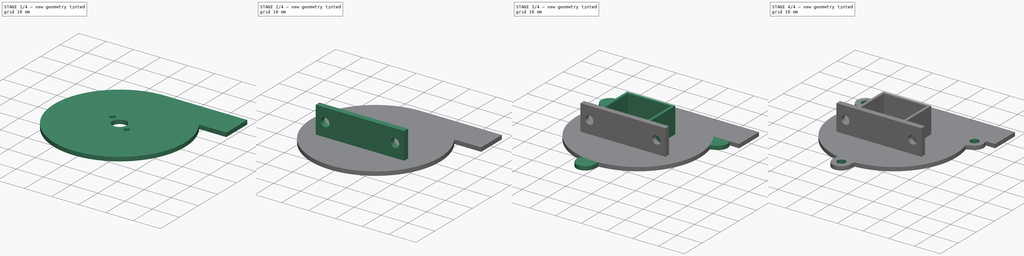
[diagram: build sequence overview — one tinted view per stage of 4, left to right]
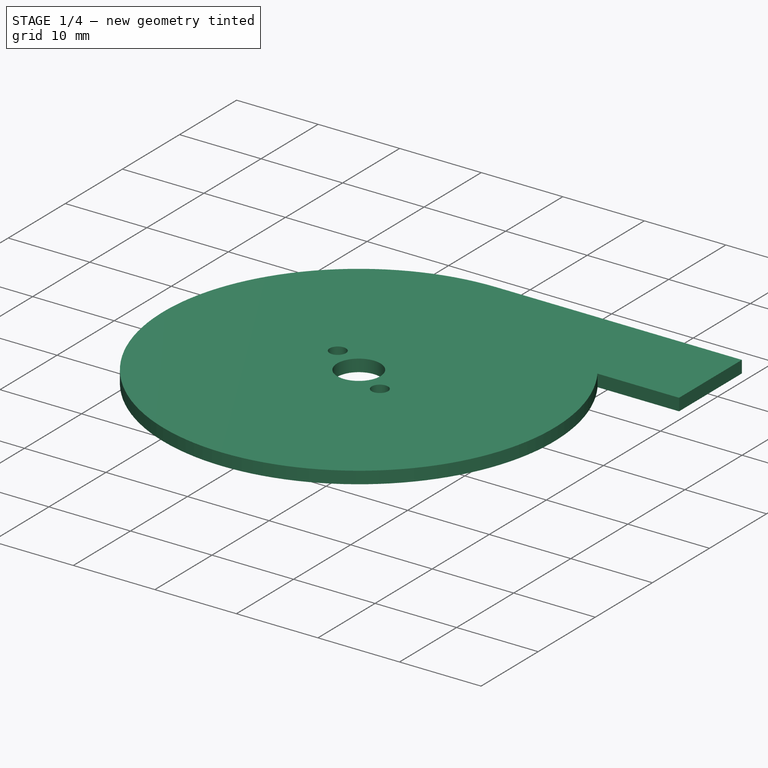
[diagram: stage 1 of 4 — iso view after this stage's code; geometry added in this stage tinted green]
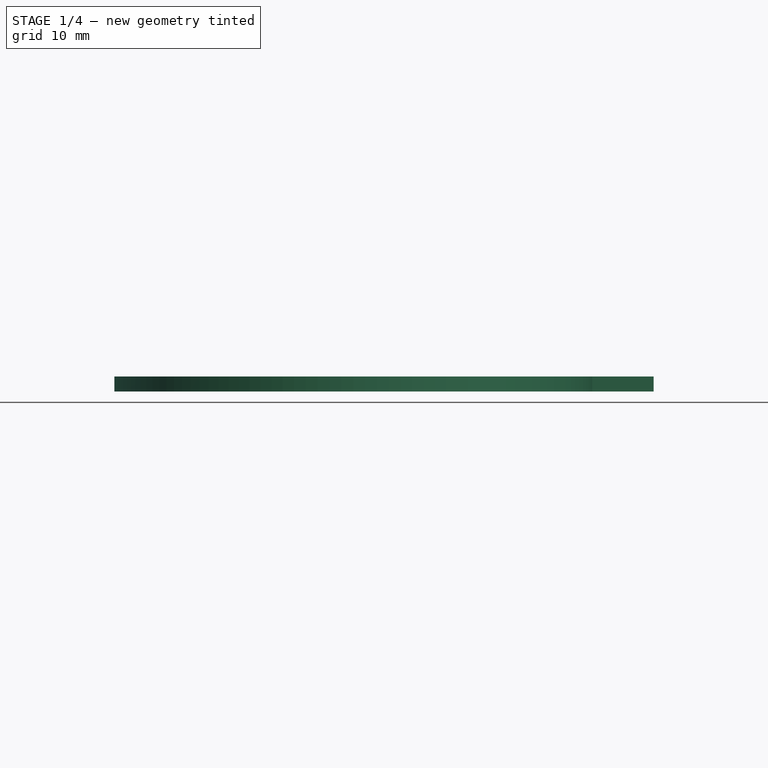
[diagram: stage 1 of 4 — front view after this stage's code; geometry added in this stage tinted green]
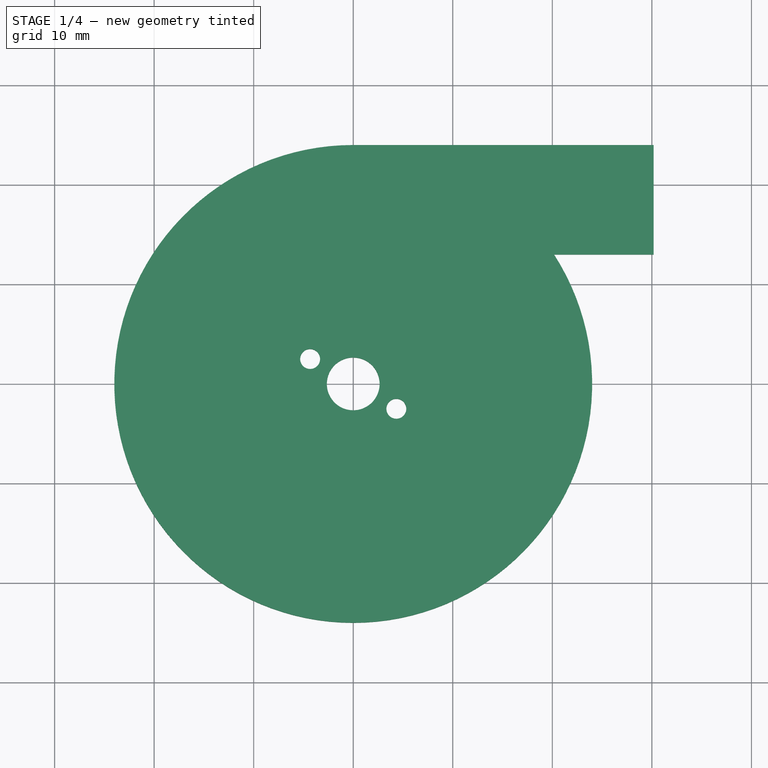
[diagram: stage 1 of 4 — top view after this stage's code; geometry added in this stage tinted green]
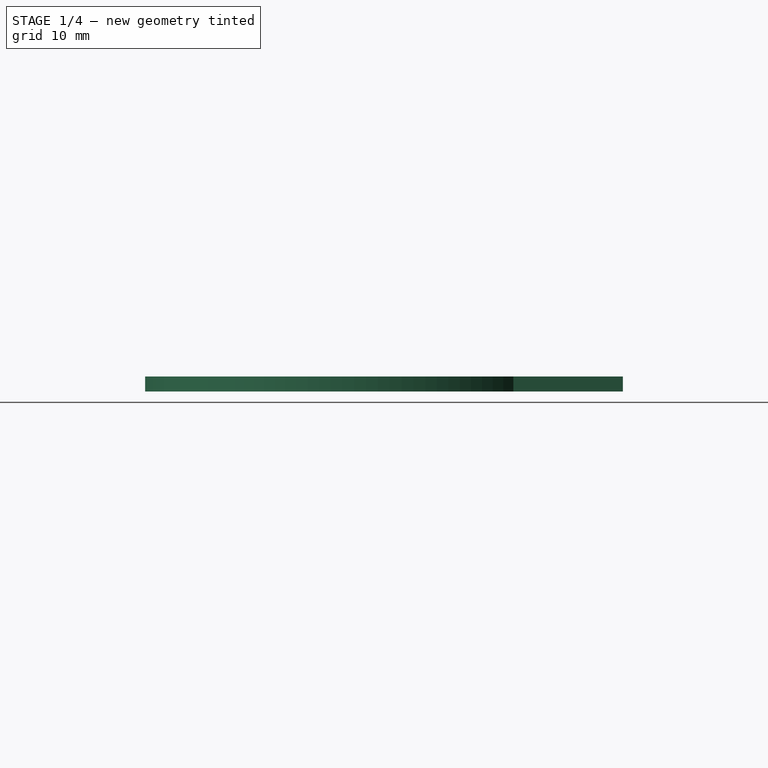
[diagram: stage 1 of 4 — right view after this stage's code; geometry added in this stage tinted green]
FCSTD DOCUMENT  (FreeCAD 0.16R5206 (Git))
Label: fan-case-back
License: All rights reserved
LicenseURL: http://en.wikipedia.org/wiki/All_rights_reserved
objects: Sketcher::SketchObject×7, PartDesign::Pad×4, PartDesign::Pocket×3, PartDesign::PolarPattern×2
note: 23 computed .brp shape members not serialized (recipe doc carries the construction recipe); baked Part::Feature solids carry a one-line shape summary decoded from their .brp

FEATURE [Sketcher::SketchObject] Sketch
  sketch-geometry (4):
    g0: ArcOfCircle CenterX=0 CenterY=0 CenterZ=0 NormalX=0 NormalY=0 NormalZ=1 Radius=24 StartAngle=1.5708 EndAngle=6.8556
    g1: LineSegment StartX=0 StartY=24 StartZ=0 EndX=30.1742 EndY=24 EndZ=0
    g2: LineSegment StartX=30.1742 StartY=24 StartZ=0 EndX=30.1742 EndY=13 EndZ=0
    g3: LineSegment StartX=30.1742 StartY=13 StartZ=0 EndX=20.1742 EndY=13 EndZ=0
  constraints (12):
    c: Coincident(g0,g-1)
    c: Radius(g0) = 24
    c: Horizontal(g1)
    c: Coincident(g1,g2)
    c: Vertical(g2)
    c: Coincident(g2,g3)
    c: Horizontal(g3)
    c: PointOnObject(g1,g-2)
    c: Coincident(g0,g3)
    c: Coincident(g1,g0)
    c: DistanceY(g2) = -11
    c: DistanceX(g0,g2) = 10
FEATURE [PartDesign::Pad] Pad
  Length = 1.5
  Length2 = 100
  Sketch = -> Sketch
  Type = 0
FEATURE [Sketcher::SketchObject] Sketch001
  Placement = pos=(0,0,1.5) rot=(0,0,1;0rad)
  Support = -> Pad [Face6]
  sketch-geometry (5):
    g0: Circle CenterX=0 CenterY=0 CenterZ=0 NormalX=0 NormalY=0 NormalZ=1 Radius=2.65
    g1: Circle CenterX=4.33013 CenterY=-2.5 CenterZ=0 NormalX=0 NormalY=0 NormalZ=1 Radius=1
    g2: Circle CenterX=-4.33013 CenterY=2.5 CenterZ=0 NormalX=0 NormalY=0 NormalZ=1 Radius=1
    g3: LineSegment [constr] StartX=4.33013 StartY=-2.5 StartZ=0 EndX=0 EndY=0 EndZ=0
    g4: LineSegment [constr] StartX=0 StartY=0 StartZ=0 EndX=-4.33013 EndY=2.5 EndZ=0
  constraints (12):
    c: Coincident(g0,g-1)
    c: Radius(g0) = 2.65
    c: Radius(g1) = 1
    c: Equal(g2,g1)
    c: Coincident(g3,g1)
    c: Coincident(g4,g3)
    c: Coincident(g4,g2)
    c: Parallel(g3,g4)
    c: Equal(g3,g4)
    c: Coincident(g3,g-1)
    c: Distance(g1,g2) = 10
    c: Angle(g3,g-1) = 0.523599
FEATURE [PartDesign::Pocket] Pocket
  Length = 5
  Sketch = -> Sketch001
  Type = 0
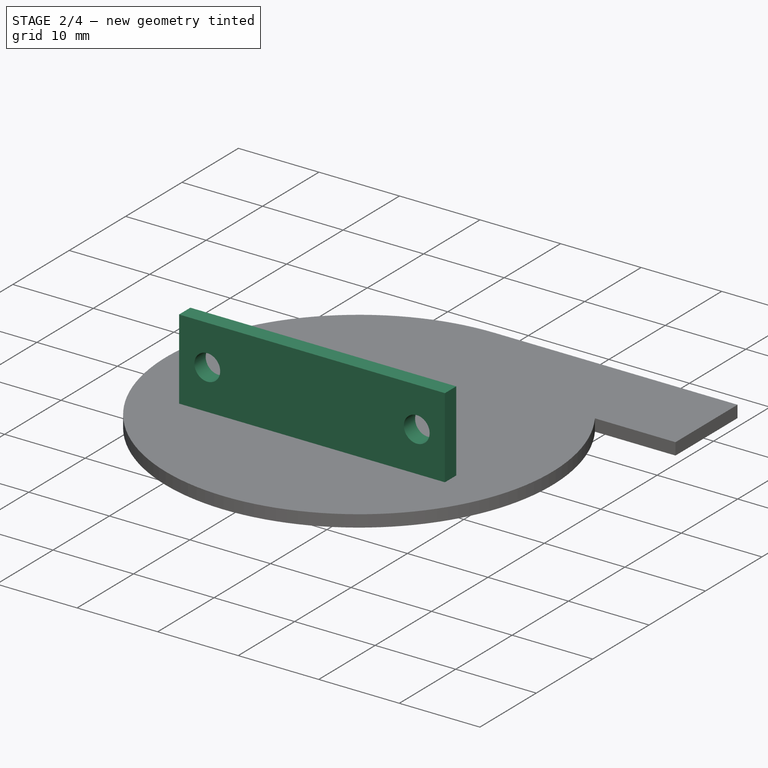
[diagram: stage 2 of 4 — iso view after this stage's code; geometry added in this stage tinted green]
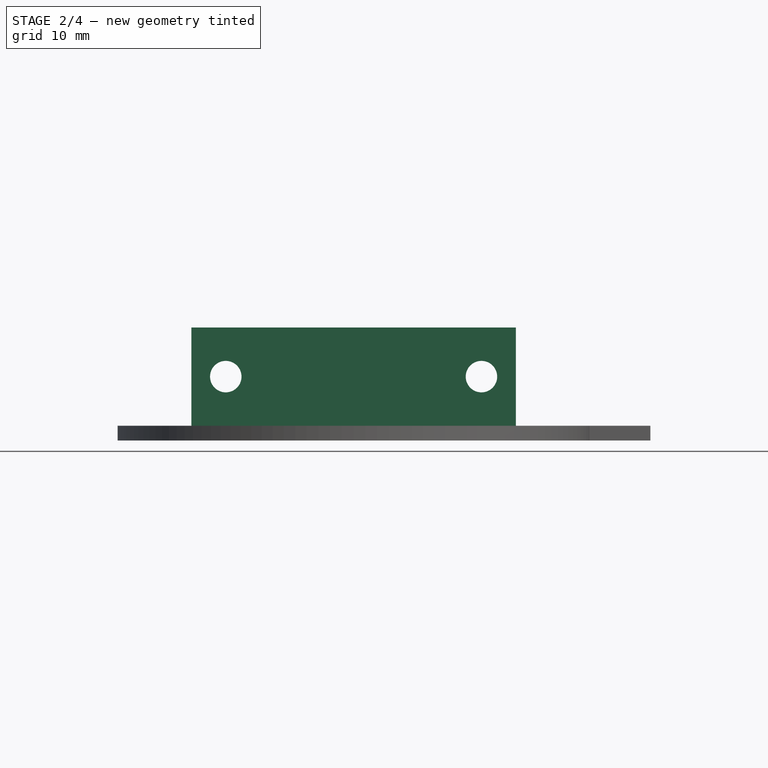
[diagram: stage 2 of 4 — front view after this stage's code; geometry added in this stage tinted green]
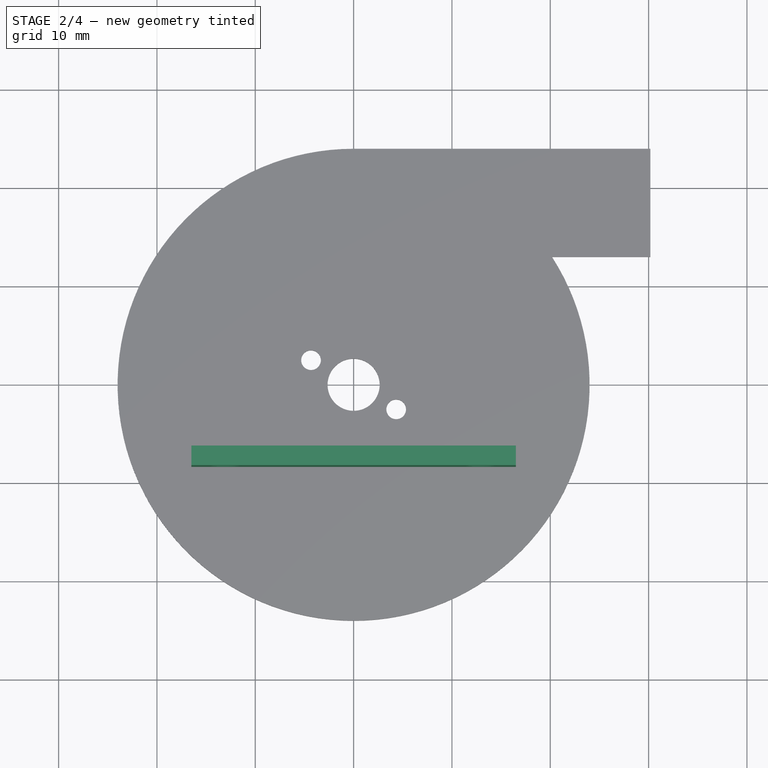
[diagram: stage 2 of 4 — top view after this stage's code; geometry added in this stage tinted green]
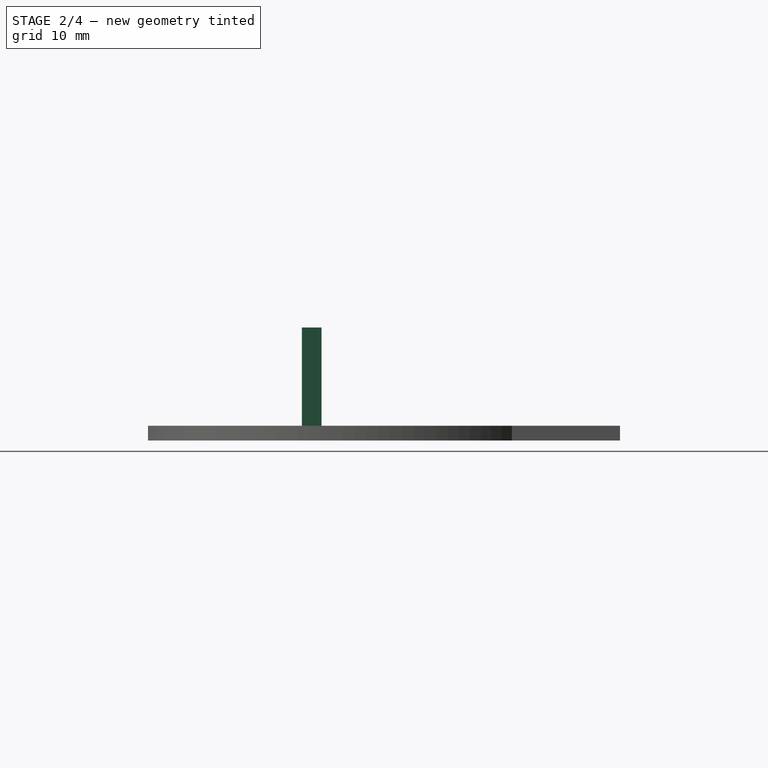
[diagram: stage 2 of 4 — right view after this stage's code; geometry added in this stage tinted green]
FEATURE [Sketcher::SketchObject] Sketch002
  Placement = pos=(0,0,1.5) rot=(0,0,1;0rad)
  Support = -> Pocket [Face5]
  sketch-geometry (4):
    g0: LineSegment StartX=-16.5 StartY=-6.35 StartZ=0 EndX=16.5 EndY=-6.35 EndZ=0
    g1: LineSegment StartX=16.5 StartY=-6.35 StartZ=0 EndX=16.5 EndY=-8.35 EndZ=0
    g2: LineSegment StartX=16.5 StartY=-8.35 StartZ=0 EndX=-16.5 EndY=-8.35 EndZ=0
    g3: LineSegment StartX=-16.5 StartY=-8.35 StartZ=0 EndX=-16.5 EndY=-6.35 EndZ=0
  constraints (12):
    c: Coincident(g0,g1)
    c: Coincident(g1,g2)
    c: Coincident(g2,g3)
    c: Coincident(g3,g0)
    c: Horizontal(g0)
    c: Horizontal(g2)
    c: Vertical(g1)
    c: Vertical(g3)
    c: Symmetric(g0,g0,g-2)
    c: DistanceY(g-1,g0) = -6.35
    c: DistanceY(g1) = -2
    c: DistanceX(g2) = -33
FEATURE [PartDesign::Pad] Pad001
  Length = 10
  Length2 = 100
  Sketch = -> Sketch002
  Type = 0
FEATURE [Sketcher::SketchObject] Sketch003
  ExternalGeometry = -> [Pad001]
  Placement = pos=(0,-6.35,0) rot=(0,0.707107,0.707107;3.14159rad)
  Support = -> Pad001 [Face11]
  sketch-geometry (4):
    g0: Circle CenterX=-13 CenterY=6.5 CenterZ=0 NormalX=0 NormalY=0 NormalZ=1 Radius=1.6
    g1: LineSegment [constr] StartX=-16.5 StartY=1.5 StartZ=0 EndX=-13 EndY=6.5 EndZ=0
    g2: LineSegment [constr] StartX=-13 StartY=6.5 StartZ=0 EndX=-16.5 EndY=11.5 EndZ=0
    g3: Circle CenterX=13 CenterY=6.5 CenterZ=0 NormalX=0 NormalY=0 NormalZ=1 Radius=1.6
  constraints (9):
    c: Radius(g0) = 1.6
    c: DistanceX(g0,g-3) = -3.5
    c: Coincident(g-3,g1)
    c: Coincident(g1,g0)
    c: Coincident(g1,g2)
    c: Coincident(g2,g-3)
    c: Equal(g1,g2)
    c: Equal(g0,g3)
    c: Symmetric(g0,g3,g-2)
FEATURE [PartDesign::Pocket] Pocket001
  Length = 5
  Sketch = -> Sketch003
  Type = 0
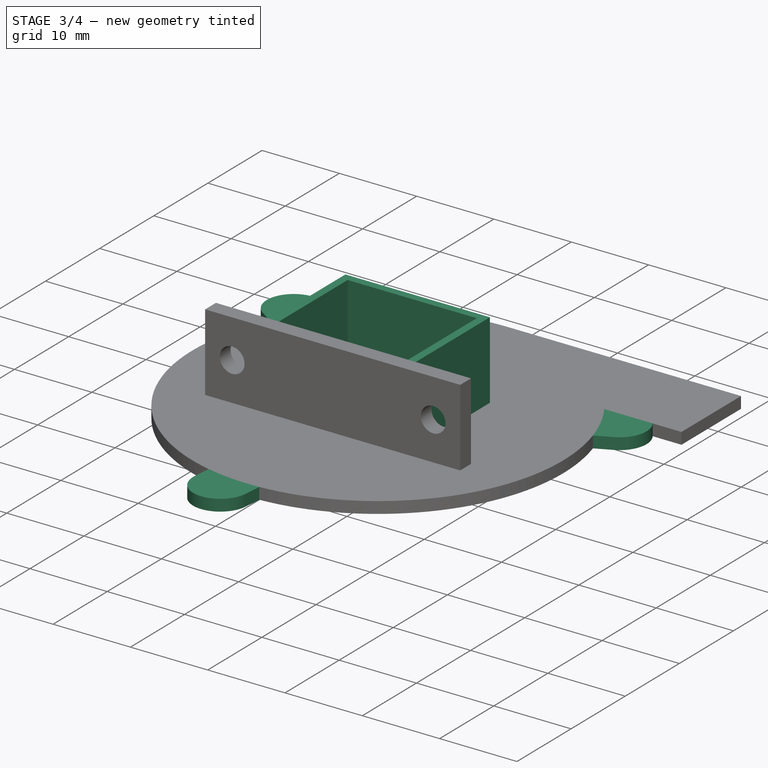
[diagram: stage 3 of 4 — iso view after this stage's code; geometry added in this stage tinted green]
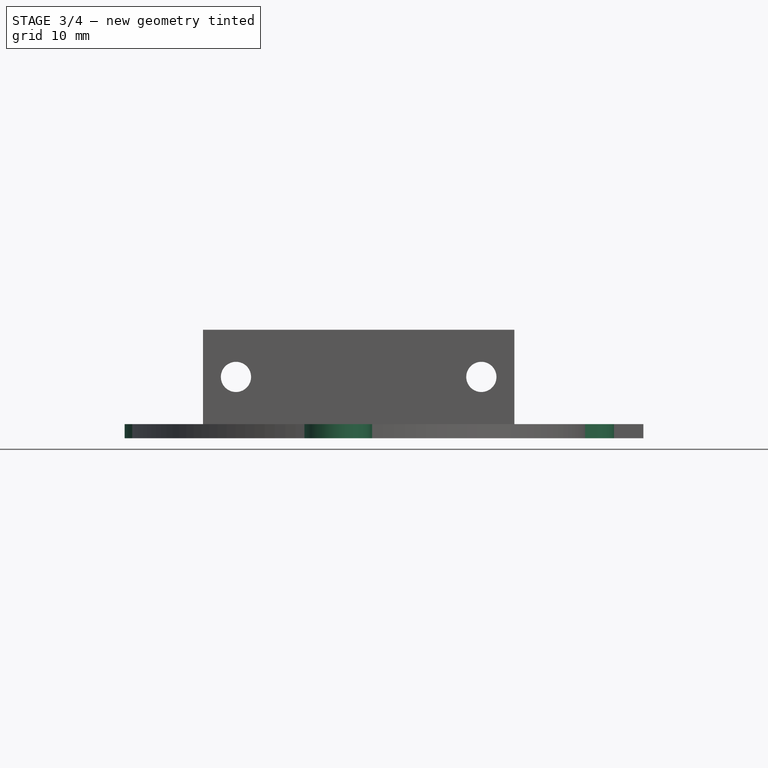
[diagram: stage 3 of 4 — front view after this stage's code; geometry added in this stage tinted green]
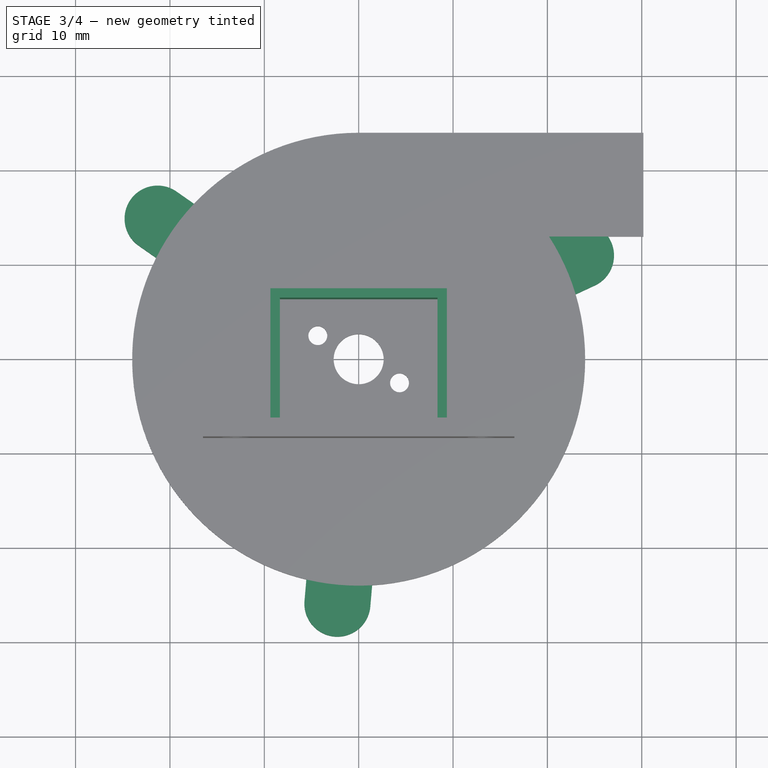
[diagram: stage 3 of 4 — top view after this stage's code; geometry added in this stage tinted green]
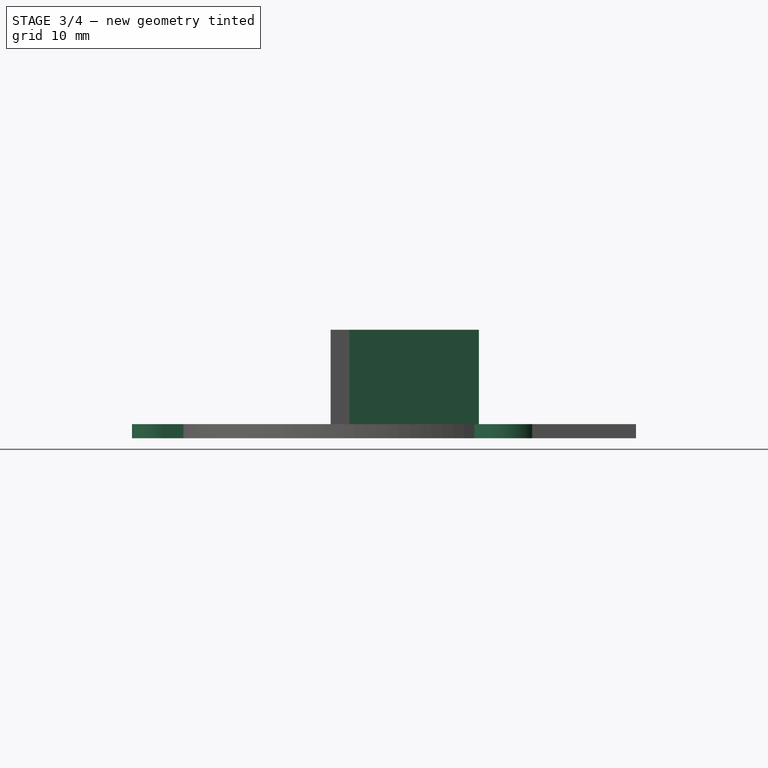
[diagram: stage 3 of 4 — right view after this stage's code; geometry added in this stage tinted green]
FEATURE [Sketcher::SketchObject] Sketch006
  Placement = pos=(0,0,1.5) rot=(0,0,1;0rad)
  Support = -> Pocket001 [Face5]
  sketch-geometry (8):
    g0: LineSegment StartX=-8.35 StartY=6.35 StartZ=0 EndX=8.35 EndY=6.35 EndZ=0
    g1: LineSegment StartX=8.35 StartY=6.35 StartZ=0 EndX=8.35 EndY=-6.35 EndZ=0
    g2: LineSegment StartX=8.35 StartY=-6.35 StartZ=0 EndX=-8.35 EndY=-6.35 EndZ=0
    g3: LineSegment StartX=-8.35 StartY=-6.35 StartZ=0 EndX=-8.35 EndY=6.35 EndZ=0
    g4: LineSegment StartX=-9.35 StartY=7.35 StartZ=0 EndX=9.35 EndY=7.35 EndZ=0
    g5: LineSegment StartX=9.35 StartY=7.35 StartZ=0 EndX=9.35 EndY=-7.35 EndZ=0
    g6: LineSegment StartX=9.35 StartY=-7.35 StartZ=0 EndX=-9.35 EndY=-7.35 EndZ=0
    g7: LineSegment StartX=-9.35 StartY=-7.35 StartZ=0 EndX=-9.35 EndY=7.35 EndZ=0
  constraints (24):
    c: Coincident(g0,g1)
    c: Coincident(g1,g2)
    c: Coincident(g2,g3)
    c: Coincident(g3,g0)
    c: Horizontal(g0)
    c: Horizontal(g2)
    c: Vertical(g1)
    c: Vertical(g3)
    c: DistanceX(g0) = 16.7
    c: DistanceY(g1) = -12.7
    c: Symmetric(g0,g0,g-2)
    c: Symmetric(g1,g0,g-1)
    c: Coincident(g4,g5)
    c: Coincident(g5,g6)
    c: Coincident(g6,g7)
    c: Coincident(g7,g4)
    c: Horizontal(g4)
    c: Horizontal(g6)
    c: Vertical(g5)
    c: Vertical(g7)
    c: Symmetric(g4,g4,g-2)
    c: Symmetric(g5,g4,g-1)
    c: DistanceX(g4,g0) = 1
    c: DistanceY(g0,g4) = 1
FEATURE [PartDesign::Pad] Pad003
  Length = 10
  Length2 = 100
  Sketch = -> Sketch006
  Type = 0
FEATURE [Sketcher::SketchObject] Sketch007
  ExternalGeometry = -> [Pocket001,Pad003]
  Placement = pos=(0,0,1.5) rot=(0,0,1;0rad)
  Support = -> Pad003 [Face5]
  sketch-geometry (4):
    g0: ArcOfCircle CenterX=23.5584 CenterY=11 CenterZ=0 NormalX=0 NormalY=0 NormalZ=1 Radius=3.5 StartAngle=5.14923 EndAngle=8.29082
    g1: LineSegment StartX=21.6197 StartY=6.23203 StartZ=0 EndX=25.0392 EndY=7.82867 EndZ=0
    g2: LineSegment StartX=18.6582 StartY=12.5747 StartZ=0 EndX=22.0777 EndY=14.1713 EndZ=0
    g3: ArcOfCircle CenterX=0 CenterY=0 CenterZ=0 NormalX=0 NormalY=0 NormalZ=1 Radius=22.5 StartAngle=0.280649 EndAngle=0.593028
  constraints (14):
    c: Radius(g0) = 3.5
    c: Tangent(g1,g0)
    c: Tangent(g2,g0)
    c: Parallel(g2,g1)
    c: Equal(g1,g2)
    c: Coincident(g0,g1)
    c: Coincident(g0,g2)
    c: Coincident(g3,g-1)
    c: Coincident(g3,g1)
    c: PointOnObject(g3,g2)
    c: Coincident(g2,g3)
    c: DistanceX(g0,g-4) = 6.6158
    c: DistanceY(g0,g-4) = 2
    c: Distance(g1) = 3.77389
FEATURE [PartDesign::Pad] Pad004
  Length = 1.5
  Length2 = 100
  Reversed = true
  Sketch = -> Sketch007
  Type = 0
FEATURE [PartDesign::PolarPattern] PolarPattern
  Angle = 360
  Axis = -> Sketch007 [N_Axis]
  Occurrences = 3
  Originals = -> [Pad004]
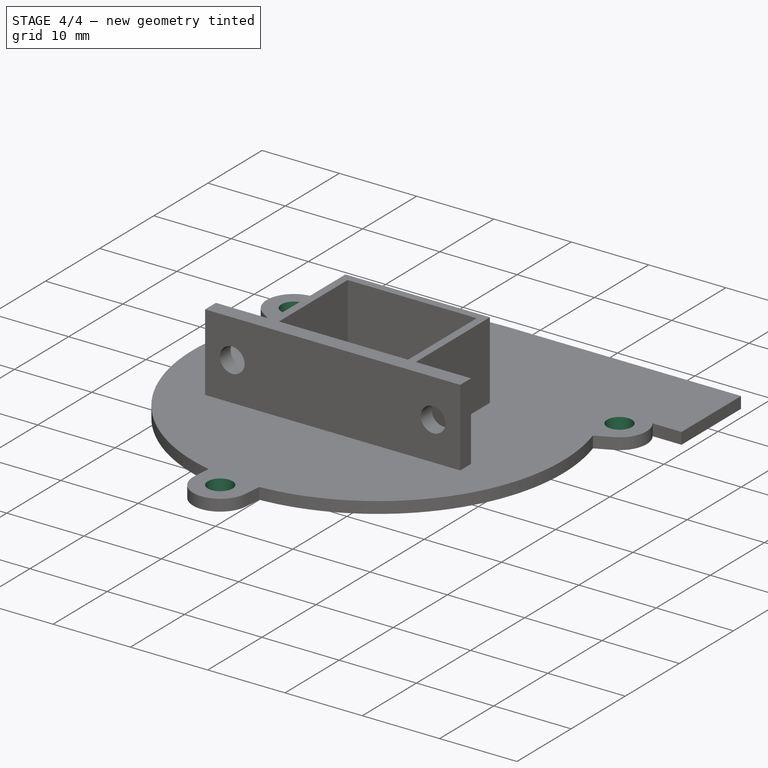
[diagram: stage 4 of 4 — iso view after this stage's code; geometry added in this stage tinted green]
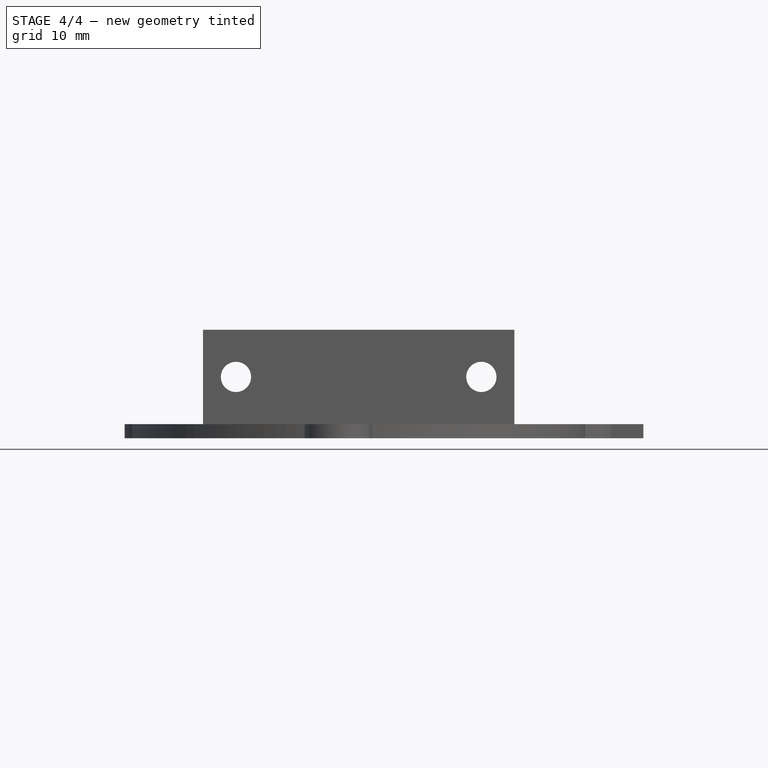
[diagram: stage 4 of 4 — front view after this stage's code; geometry added in this stage tinted green]
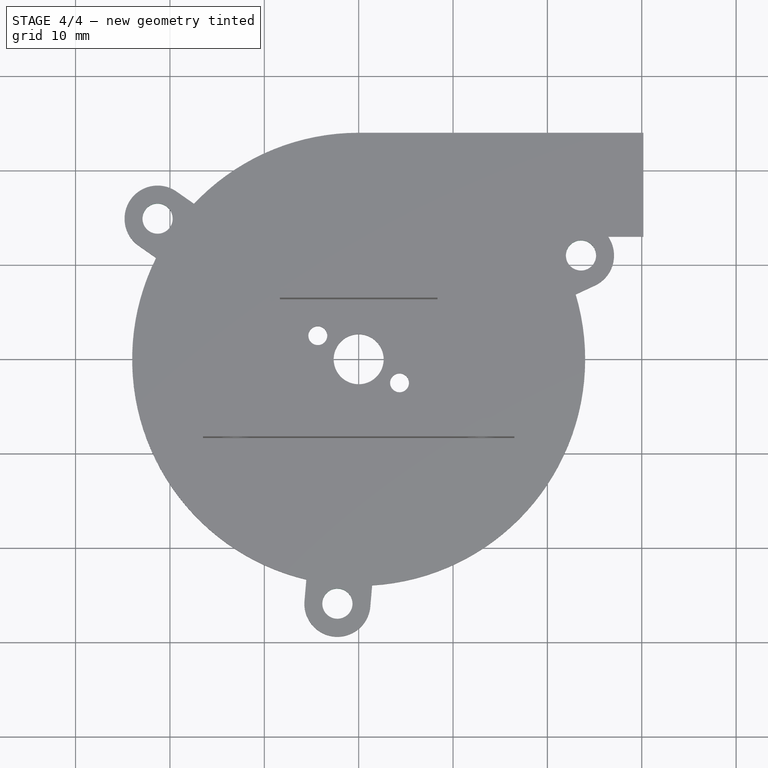
[diagram: stage 4 of 4 — top view after this stage's code; geometry added in this stage tinted green]
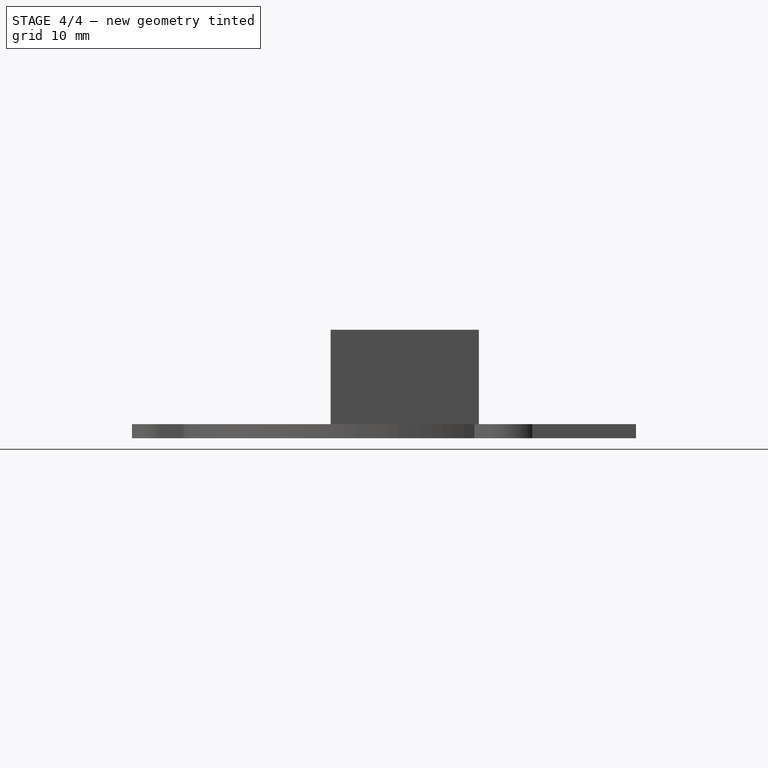
[diagram: stage 4 of 4 — right view after this stage's code; geometry added in this stage tinted green]
FEATURE [Sketcher::SketchObject] Sketch008
  ExternalGeometry = -> [PolarPattern]
  Placement = pos=(0,0,1.5) rot=(0,0,1;0rad)
  Support = -> PolarPattern [Face39]
  sketch-geometry (1):
    g0: Circle CenterX=23.5584 CenterY=11 CenterZ=0 NormalX=0 NormalY=0 NormalZ=1 Radius=1.6
  constraints (2):
    c: Coincident(g0,g-3)
    c: Radius(g0) = 1.6
FEATURE [PartDesign::Pocket] Pocket002
  Length = 5
  Sketch = -> Sketch008
  Type = 0
FEATURE [PartDesign::PolarPattern] PolarPattern001
  Angle = 360
  Axis = -> Sketch008 [N_Axis]
  Occurrences = 3
  Originals = -> [Pocket002]
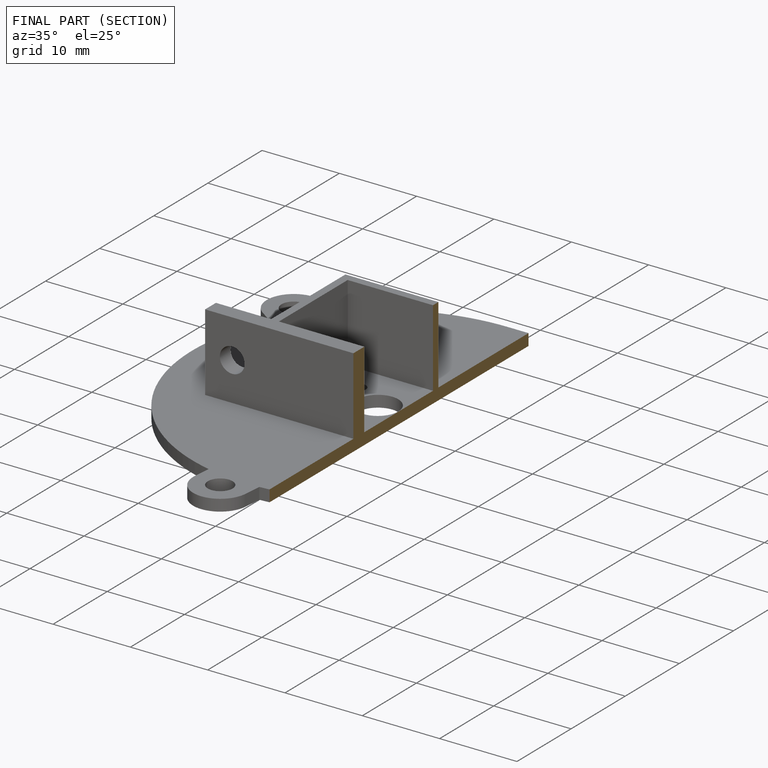
[diagram: finished part — half-section view (interior)]
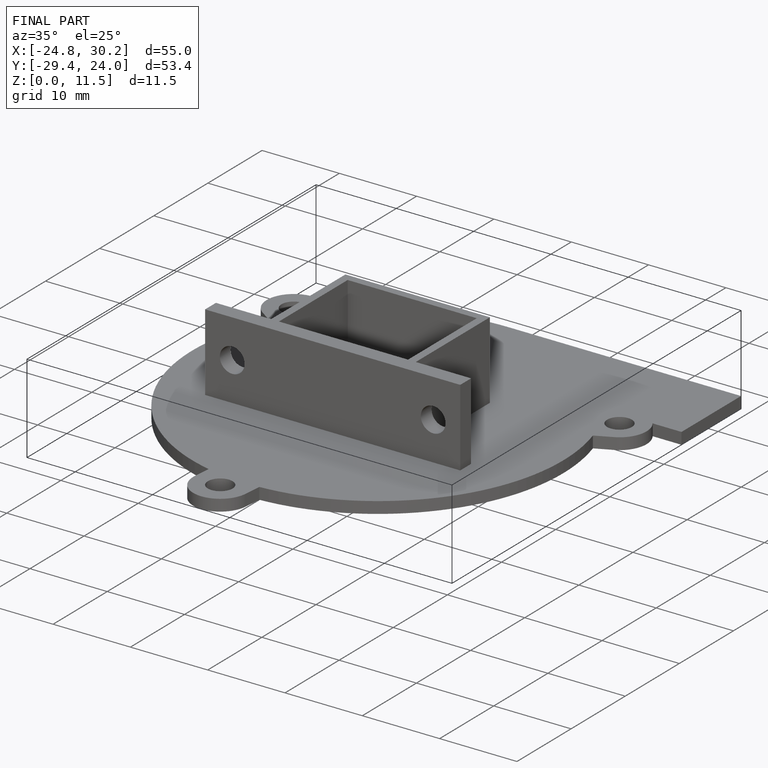
[diagram: finished part — iso view with bounding-box wireframe]
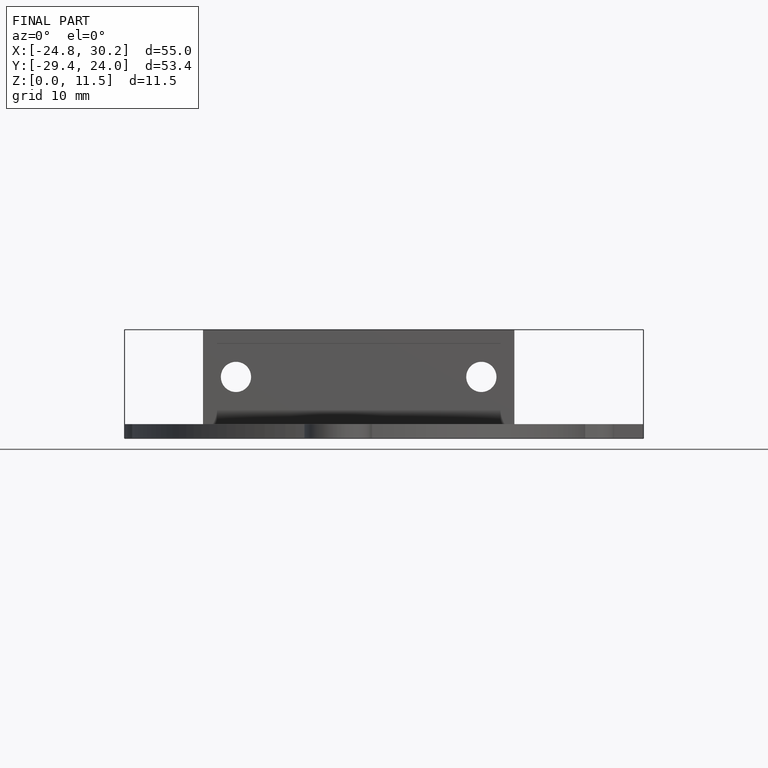
[diagram: finished part — front view with bounding-box wireframe]
